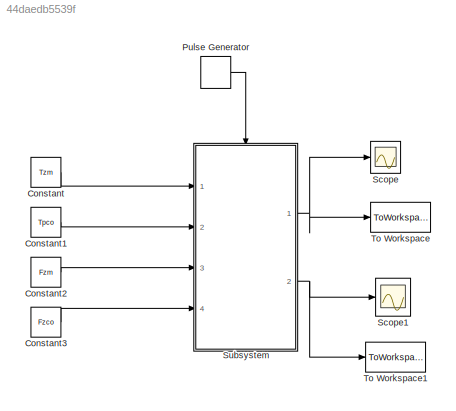
MODEL slx_44daedb5539f
KIND model
BLOCK [Constant] Constant
  Value = Tzm
BLOCK [Constant] Constant1
  Value = Tpco
BLOCK [Constant] Constant2
  Value = Fzm
BLOCK [Constant] Constant3
  Value = Fzco
BLOCK [DiscretePulseGenerator] Pulse Generator
  Ports = [0, 1]
  PulseType = Time based
  PulseWidth = 50
BLOCK [Scope] Scope
  DataFormat = StructureWithTime
  Floating = off
  LimitDataPoints = off
  NumInputPorts = 1
  Ports = [1]
  SampleTime = 0
  ShowLegends = off
BLOCK [Scope] Scope1
  DataFormat = StructureWithTime
  Floating = off
  LimitDataPoints = off
  NumInputPorts = 1
  Ports = [1]
  SampleTime = 0
  SaveName = ScopeData1
  ShowLegends = off
  ZoomMode = xonly
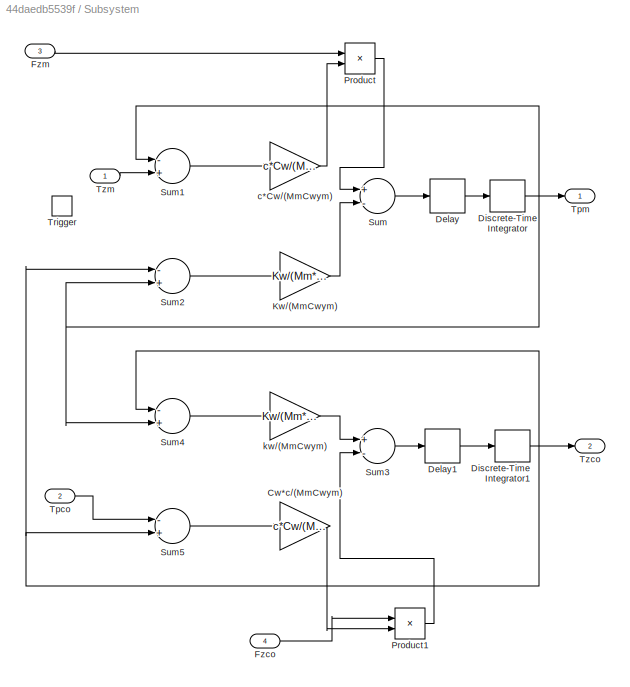
BLOCK [SubSystem] Subsystem
  FunctionWithSeparateData = off
  MaskHideContents = off
  MinAlgLoopOccurrences = off
  Opaque = off
  Ports = [4, 2, 0, 1]
  PropExecContextOutsideSubsystem = off
  RTWSystemCode = Auto
  RequestExecContextInheritance = off
BLOCK [Gain] Subsystem/Cw*c//(MmCwym)
  Gain = c*Cw/(Mm*Cwym)
  OutDataTypeStr = Inherit: Inherit via internal rule
  ParamDataTypeStr = Inherit: Inherit via internal rule
  SaturateOnIntegerOverflow = off
BLOCK [Delay] Subsystem/Delay
  DelayLength = 1
  InitialCondition = 0
  InputPortMap = u0
  Ports = [1, 1]
BLOCK [Delay] Subsystem/Delay1
  DelayLength = 1
  InitialCondition = 0
  InputPortMap = u0
  Ports = [1, 1]
BLOCK [DiscreteIntegrator] Subsystem/Discrete-Time Integrator
  ICPrevOutput = DiscIntNeverNeededParam
  ICPrevScaledInput = DiscIntNeverNeededParam
  InitialCondition = 30
  IntegratorMethod = Integration: Trapezoidal
  Ports = [1, 1]
  SampleTime = -1
BLOCK [DiscreteIntegrator] Subsystem/Discrete-Time Integrator1
  ICPrevOutput = DiscIntNeverNeededParam
  ICPrevScaledInput = DiscIntNeverNeededParam
  InitialCondition = 20
  IntegratorMethod = Integration: Trapezoidal
  Ports = [1, 1]
  SampleTime = -1
BLOCK [Inport] Subsystem/Fzco
  IconDisplay = Port number
  Port = 4
BLOCK [Inport] Subsystem/Fzm
  IconDisplay = Port number
  Port = 3
BLOCK [Gain] Subsystem/Kw//(MmCwym)
  Gain = Kw/(Mm*Cwym)
  OutDataTypeStr = Inherit: Inherit via internal rule
  ParamDataTypeStr = Inherit: Inherit via internal rule
  SaturateOnIntegerOverflow = off
BLOCK [Product] Subsystem/Product
  InputSameDT = off
  OutDataTypeStr = Inherit: Inherit via internal rule
  Ports = [2, 1]
  RndMeth = Floor
  SaturateOnIntegerOverflow = off
BLOCK [Product] Subsystem/Product1
  InputSameDT = off
  OutDataTypeStr = Inherit: Inherit via internal rule
  Ports = [2, 1]
  RndMeth = Floor
  SaturateOnIntegerOverflow = off
BLOCK [Sum] Subsystem/Sum
  InputSameDT = off
  Inputs = +-
  OutDataTypeStr = Inherit: Inherit via internal rule
  Ports = [2, 1]
  SaturateOnIntegerOverflow = off
BLOCK [Sum] Subsystem/Sum1
  InputSameDT = off
  Inputs = -+
  OutDataTypeStr = Inherit: Inherit via internal rule
  Ports = [2, 1]
  SaturateOnIntegerOverflow = off
BLOCK [Sum] Subsystem/Sum2
  InputSameDT = off
  Inputs = -+
  OutDataTypeStr = Inherit: Inherit via internal rule
  Ports = [2, 1]
  SaturateOnIntegerOverflow = off
BLOCK [Sum] Subsystem/Sum3
  InputSameDT = off
  Inputs = +-
  OutDataTypeStr = Inherit: Inherit via internal rule
  Ports = [2, 1]
  SaturateOnIntegerOverflow = off
BLOCK [Sum] Subsystem/Sum4
  InputSameDT = off
  Inputs = -+
  OutDataTypeStr = Inherit: Inherit via internal rule
  Ports = [2, 1]
  SaturateOnIntegerOverflow = off
BLOCK [Sum] Subsystem/Sum5
  InputSameDT = off
  Inputs = -+
  OutDataTypeStr = Inherit: Inherit via internal rule
  Ports = [2, 1]
  SaturateOnIntegerOverflow = off
BLOCK [Inport] Subsystem/Tpco
  IconDisplay = Port number
  Port = 2
BLOCK [Outport] Subsystem/Tpm
  IconDisplay = Port number
  InitialOutput = 90
BLOCK [TriggerPort] Subsystem/Trigger
  PortDimensions = 1
  Ports = []
  StatesWhenEnabling = held
BLOCK [Outport] Subsystem/Tzco
  IconDisplay = Port number
  InitialOutput = 20
  Port = 2
BLOCK [Inport] Subsystem/Tzm
  IconDisplay = Port number
BLOCK [Gain] Subsystem/c*Cw//(MmCwym)
  Gain = c*Cw/(Mm*Cwym)
  OutDataTypeStr = Inherit: Inherit via internal rule
  ParamDataTypeStr = Inherit: Inherit via internal rule
  SaturateOnIntegerOverflow = off
BLOCK [Gain] Subsystem/kw//(MmCwym)
  Gain = Kw/(Mm*Cwym)
  OutDataTypeStr = Inherit: Inherit via internal rule
  ParamDataTypeStr = Inherit: Inherit via internal rule
  SaturateOnIntegerOverflow = off
BLOCK [ToWorkspace] To Workspace
  FixptAsFi = on
  MaxDataPoints = 1
  Ports = [1]
  SampleTime = -1
  VariableName = Tpm
BLOCK [ToWorkspace] To Workspace1
  FixptAsFi = on
  MaxDataPoints = 1
  Ports = [1]
  SampleTime = -1
  VariableName = Tzco
LINE Constant1:1 -> Subsystem:2
LINE Constant2:1 -> Subsystem:3
LINE Constant3:1 -> Subsystem:4
LINE Constant:1 -> Subsystem:1
LINE Pulse Generator:1 -> Subsystem:trigger
LINE Subsystem/Cw*c//(MmCwym):1 -> Subsystem/Product1:2
LINE Subsystem/Delay1:1 -> Subsystem/Discrete-Time Integrator1:1
LINE Subsystem/Delay:1 -> Subsystem/Discrete-Time Integrator:1
NET Subsystem/Discrete-Time Integrator1:1 -> Subsystem/Sum2:1, Subsystem/Sum4:1, Subsystem/Sum5:2, Subsystem/Tzco:1
NET Subsystem/Discrete-Time Integrator:1 -> Subsystem/Sum1:1, Subsystem/Sum2:2, Subsystem/Sum4:2, Subsystem/Tpm:1
LINE Subsystem/Fzco:1 -> Subsystem/Product1:1
LINE Subsystem/Fzm:1 -> Subsystem/Product:1
LINE Subsystem/Kw//(MmCwym):1 -> Subsystem/Sum:2
LINE Subsystem/Product1:1 -> Subsystem/Sum3:2
LINE Subsystem/Product:1 -> Subsystem/Sum:1
LINE Subsystem/Sum1:1 -> Subsystem/c*Cw//(MmCwym):1
LINE Subsystem/Sum2:1 -> Subsystem/Kw//(MmCwym):1
LINE Subsystem/Sum3:1 -> Subsystem/Delay1:1
LINE Subsystem/Sum4:1 -> Subsystem/kw//(MmCwym):1
LINE Subsystem/Sum5:1 -> Subsystem/Cw*c//(MmCwym):1
LINE Subsystem/Sum:1 -> Subsystem/Delay:1
LINE Subsystem/Tpco:1 -> Subsystem/Sum5:1
LINE Subsystem/Tzm:1 -> Subsystem/Sum1:2
LINE Subsystem/c*Cw//(MmCwym):1 -> Subsystem/Product:2
LINE Subsystem/kw//(MmCwym):1 -> Subsystem/Sum3:1
NET Subsystem:1 -> Scope:1, To Workspace:1
NET Subsystem:2 -> Scope1:1, To Workspace1:1
note: NET lines group one-source signal fan-out (src -> all destinations, sorted); 1:1 wires keep LINE
